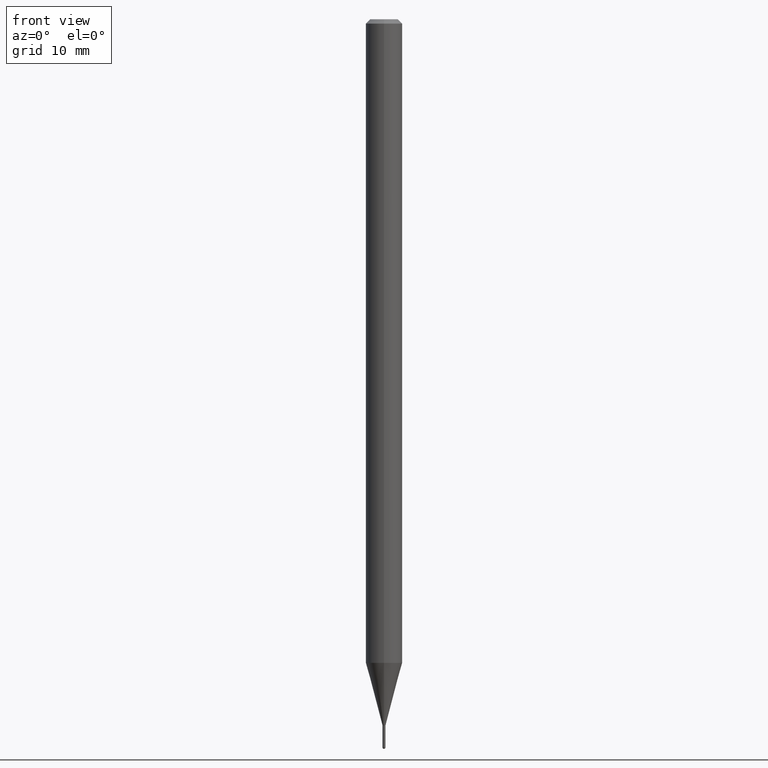
[diagram: clean part render]
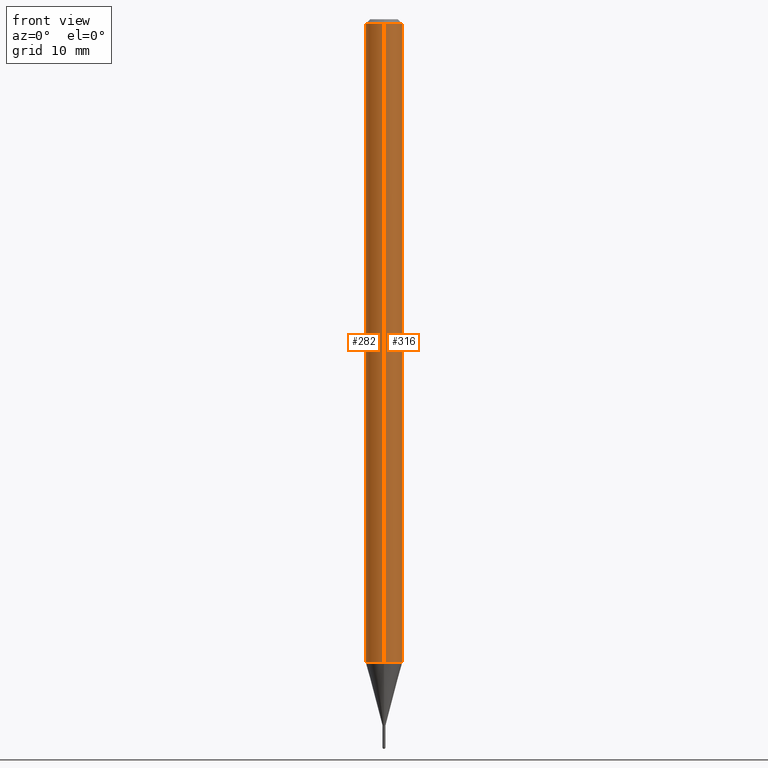
[diagram: same view with one multi-face feature highlighted, each face labeled with its STEP entity id]
A machine part, front view. The highlighted faces form ONE feature: a constant-radius fillet chain: 2 tangent blend faces with common blend radius 1.5875 mm. The faces share edges in the B-rep.
Their STEP definitions:
[1] entity #316 (Cylinder):
#5 = CARTESIAN_POINT ( 'NONE',  ( 4.440892098501163573E-16, 0.06249999999999229089, -2.205407078564797452 ) ) ;
#6 = CARTESIAN_POINT ( 'NONE',  ( -4.364351673553377310E-16, -0.06250000000000770217, -2.205407078564797008 ) ) ;
#44 = CIRCLE ( 'NONE', #166, 0.06250000000000000000 ) ;
#66 = VERTEX_POINT ( 'NONE', #5 ) ;
#71 = DIRECTION ( 'NONE',  ( -2.446037899969397726E-29, 3.490666364153276782E-15, 1.000000000000000000 ) ) ;
#82 = CARTESIAN_POINT ( 'NONE',  ( 0.000000000000000000, 0.000000000000000000, 0.000000000000000000 ) ) ;
#86 = DIRECTION ( 'NONE',  ( -2.446037899969397726E-29, 3.490666364153276782E-15, 1.000000000000000000 ) ) ;
#98 = EDGE_CURVE ( 'NONE', #287, #66, #149, .T. ) ;
#116 = CYLINDRICAL_SURFACE ( 'NONE', #505, 0.06250000000000000000 ) ;
#122 = CARTESIAN_POINT ( 'NONE',  ( 3.669056849954113422E-31, -5.235999546229937606E-17, -0.01500000000000006710 ) ) ;
#129 = AXIS2_PLACEMENT_3D ( 'NONE', #370, #373, #147 ) ;
#138 = ORIENTED_EDGE ( 'NONE', *, *, #238, .T. ) ;
#147 = DIRECTION ( 'NONE',  ( -6.982962677686265922E-15, -1.000000000000000000, 4.370956789862821150E-15 ) ) ;
#149 = CIRCLE ( 'NONE', #129, 0.06250000000000000000 ) ;
#151 = FACE_OUTER_BOUND ( 'NONE', #291, .T. ) ;
#156 = CARTESIAN_POINT ( 'NONE',  ( -4.364351673553912750E-16, -0.06250000000000005551, -0.01499999999999984852 ) ) ;
#166 = AXIS2_PLACEMENT_3D ( 'NONE', #122, #242, #392 ) ;
#187 = ORIENTED_EDGE ( 'NONE', *, *, #278, .F. ) ;
#188 = DIRECTION ( 'NONE',  ( -2.446037899969398006E-29, 3.490666364153276782E-15, 1.000000000000000000 ) ) ;
#230 = LINE ( 'NONE', #385, #296 ) ;
#238 = EDGE_CURVE ( 'NONE', #66, #247, #465, .T. ) ;
#242 = DIRECTION ( 'NONE',  ( -2.446037899969398006E-29, 3.490666364153276782E-15, 1.000000000000000000 ) ) ;
#247 = VERTEX_POINT ( 'NONE', #430 ) ;
#278 = EDGE_CURVE ( 'NONE', #318, #247, #44, .T. ) ;
#287 = VERTEX_POINT ( 'NONE', #6 ) ;
#291 = EDGE_LOOP ( 'NONE', ( #449, #138, #187, #372 ) ) ;
#296 = VECTOR ( 'NONE', #71, 39.37007874015748143 ) ;
#316 = ADVANCED_FACE ( 'NONE', ( #151 ), #116, .T. ) ;
#318 = VERTEX_POINT ( 'NONE', #156 ) ;
#332 = VECTOR ( 'NONE', #86, 39.37007874015748143 ) ;
#352 = EDGE_CURVE ( 'NONE', #287, #318, #230, .T. ) ;
#370 = CARTESIAN_POINT ( 'NONE',  ( 5.394509299030280483E-29, -7.698340308411679369E-15, -2.205407078564797008 ) ) ;
#372 = ORIENTED_EDGE ( 'NONE', *, *, #352, .F. ) ;
#373 = DIRECTION ( 'NONE',  ( -2.446037899969398006E-29, 3.490666364153276782E-15, 1.000000000000000000 ) ) ;
#385 = CARTESIAN_POINT ( 'NONE',  ( -4.364351673553916201E-16, -0.06250000000000000000, 2.181666477595797989E-16 ) ) ;
#392 = DIRECTION ( 'NONE',  ( -6.982962677686265922E-15, -1.000000000000000000, 3.483106191921935554E-15 ) ) ;
#421 = DIRECTION ( 'NONE',  ( -6.982962677686265922E-15, -1.000000000000000000, 3.490666364153276782E-15 ) ) ;
#430 = CARTESIAN_POINT ( 'NONE',  ( 4.440892098501169490E-16, 0.06249999999999995837, -0.01500000000000028394 ) ) ;
#449 = ORIENTED_EDGE ( 'NONE', *, *, #98, .T. ) ;
#465 = LINE ( 'NONE', #468, #332 ) ;
#468 = CARTESIAN_POINT ( 'NONE',  ( 4.440892098500625669E-16, 0.06250000000000000000, -2.181666477595797989E-16 ) ) ;
#505 = AXIS2_PLACEMENT_3D ( 'NONE', #82, #188, #421 ) ;
[2] entity #282 (Cylinder):
#1 = FACE_OUTER_BOUND ( 'NONE', #300, .T. ) ;
#5 = CARTESIAN_POINT ( 'NONE',  ( 4.440892098501163573E-16, 0.06249999999999229089, -2.205407078564797452 ) ) ;
#6 = CARTESIAN_POINT ( 'NONE',  ( -4.364351673553377310E-16, -0.06250000000000770217, -2.205407078564797008 ) ) ;
#32 = DIRECTION ( 'NONE',  ( -2.446037899969398006E-29, 3.490666364153276782E-15, 1.000000000000000000 ) ) ;
#46 = DIRECTION ( 'NONE',  ( -6.982962677686265922E-15, -1.000000000000000000, 3.490666364153276782E-15 ) ) ;
#48 = AXIS2_PLACEMENT_3D ( 'NONE', #104, #498, #301 ) ;
#66 = VERTEX_POINT ( 'NONE', #5 ) ;
#71 = DIRECTION ( 'NONE',  ( -2.446037899969397726E-29, 3.490666364153276782E-15, 1.000000000000000000 ) ) ;
#81 = ORIENTED_EDGE ( 'NONE', *, *, #226, .F. ) ;
#84 = CARTESIAN_POINT ( 'NONE',  ( 3.669056849954113422E-31, -5.235999546229937606E-17, -0.01500000000000006710 ) ) ;
#86 = DIRECTION ( 'NONE',  ( -2.446037899969397726E-29, 3.490666364153276782E-15, 1.000000000000000000 ) ) ;
#104 = CARTESIAN_POINT ( 'NONE',  ( 5.394509299030280483E-29, -7.698340308411679369E-15, -2.205407078564797008 ) ) ;
#124 = CYLINDRICAL_SURFACE ( 'NONE', #182, 0.06250000000000000000 ) ;
#150 = ORIENTED_EDGE ( 'NONE', *, *, #303, .T. ) ;
#156 = CARTESIAN_POINT ( 'NONE',  ( -4.364351673553912750E-16, -0.06250000000000005551, -0.01499999999999984852 ) ) ;
#182 = AXIS2_PLACEMENT_3D ( 'NONE', #435, #395, #46 ) ;
#191 = DIRECTION ( 'NONE',  ( -6.982962677686265922E-15, -1.000000000000000000, 3.483106191921935554E-15 ) ) ;
#200 = AXIS2_PLACEMENT_3D ( 'NONE', #84, #32, #191 ) ;
#226 = EDGE_CURVE ( 'NONE', #247, #318, #378, .T. ) ;
#230 = LINE ( 'NONE', #385, #296 ) ;
#238 = EDGE_CURVE ( 'NONE', #66, #247, #465, .T. ) ;
#247 = VERTEX_POINT ( 'NONE', #430 ) ;
#271 = CIRCLE ( 'NONE', #48, 0.06250000000000000000 ) ;
#282 = ADVANCED_FACE ( 'NONE', ( #1 ), #124, .T. ) ;
#287 = VERTEX_POINT ( 'NONE', #6 ) ;
#296 = VECTOR ( 'NONE', #71, 39.37007874015748143 ) ;
#300 = EDGE_LOOP ( 'NONE', ( #420, #150, #466, #81 ) ) ;
#301 = DIRECTION ( 'NONE',  ( -6.982962677686265922E-15, -1.000000000000000000, 4.370956789862821150E-15 ) ) ;
#303 = EDGE_CURVE ( 'NONE', #66, #287, #271, .T. ) ;
#318 = VERTEX_POINT ( 'NONE', #156 ) ;
#332 = VECTOR ( 'NONE', #86, 39.37007874015748143 ) ;
#352 = EDGE_CURVE ( 'NONE', #287, #318, #230, .T. ) ;
#378 = CIRCLE ( 'NONE', #200, 0.06250000000000000000 ) ;
#385 = CARTESIAN_POINT ( 'NONE',  ( -4.364351673553916201E-16, -0.06250000000000000000, 2.181666477595797989E-16 ) ) ;
#395 = DIRECTION ( 'NONE',  ( -2.446037899969398006E-29, 3.490666364153276782E-15, 1.000000000000000000 ) ) ;
#420 = ORIENTED_EDGE ( 'NONE', *, *, #238, .F. ) ;
#430 = CARTESIAN_POINT ( 'NONE',  ( 4.440892098501169490E-16, 0.06249999999999995837, -0.01500000000000028394 ) ) ;
#435 = CARTESIAN_POINT ( 'NONE',  ( 0.000000000000000000, 0.000000000000000000, 0.000000000000000000 ) ) ;
#465 = LINE ( 'NONE', #468, #332 ) ;
#466 = ORIENTED_EDGE ( 'NONE', *, *, #352, .T. ) ;
#468 = CARTESIAN_POINT ( 'NONE',  ( 4.440892098500625669E-16, 0.06250000000000000000, -2.181666477595797989E-16 ) ) ;
#498 = DIRECTION ( 'NONE',  ( -2.446037899969398006E-29, 3.490666364153276782E-15, 1.000000000000000000 ) ) ;